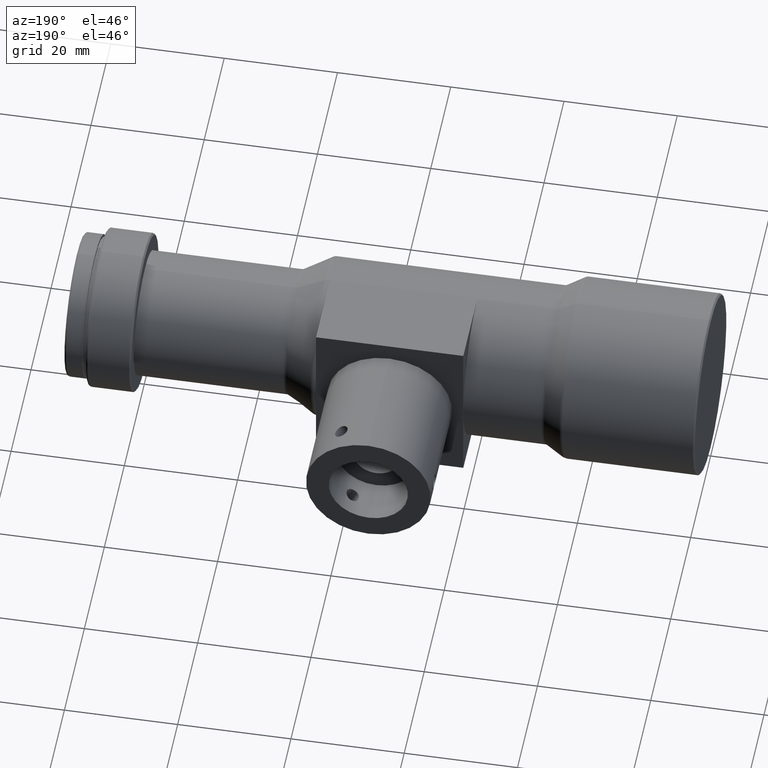
[diagram: clean part render]
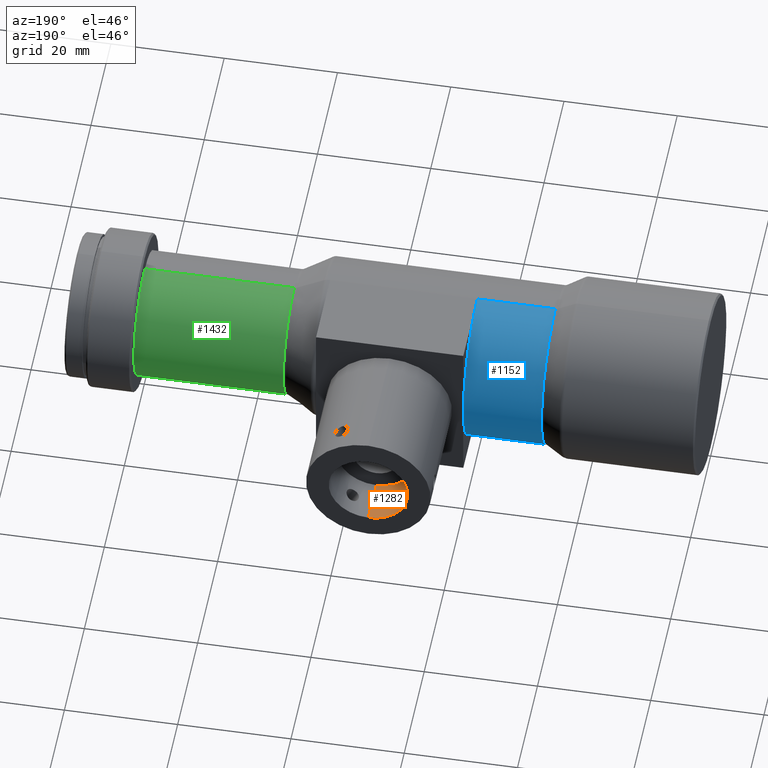
[diagram: same view with three faces highlighted in distinct colors, each labeled with its STEP entity id]
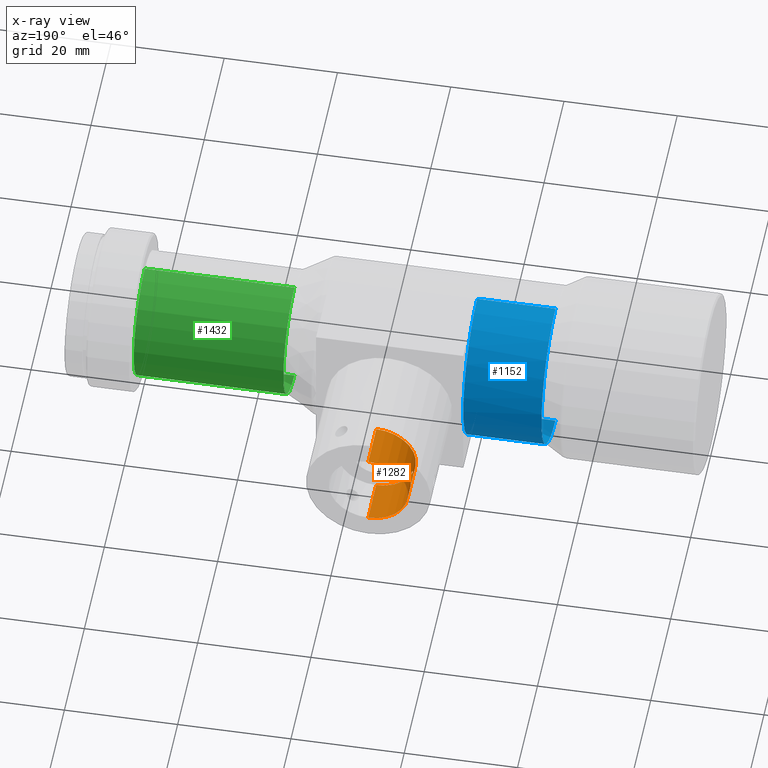
[diagram: x-ray of the same camera — body ghosted, the three highlighted faces saturated]
A machine part, auxiliary view with three faces highlighted in distinct colors.
The next image is the same camera in x-ray (body ghosted, the three faces saturated) — at least one of them is partly hidden behind the body in this view.
Their STEP definitions:

[orange] entity #1282 — the highlighted cylindrical surface (partial cylindrical patch) has radius 7 mm, axis along (-0, 1, -0).
#33 = CARTESIAN_POINT ( 'NONE',  ( 54.20000000000001000, 35.39999999999999900, 7.000000000000000000 ) ) ;
#39 = CARTESIAN_POINT ( 'NONE',  ( 54.20000000000001000, 27.40000000000000200, 0.0000000000000000000 ) ) ;
#58 = CARTESIAN_POINT ( 'NONE',  ( 54.20000000000001000, 35.39999999999999900, 0.0000000000000000000 ) ) ;
#96 = CARTESIAN_POINT ( 'NONE',  ( 47.19999445020086200, 32.65003107887736200, -0.08123712202961228000 ) ) ;
#99 = CIRCLE ( 'NONE', #1672, 7.000000000000000000 ) ;
#108 = DIRECTION ( 'NONE',  ( -0.0000000000000000000, 1.000000000000000000, -0.0000000000000000000 ) ) ;
#119 = ORIENTED_EDGE ( 'NONE', *, *, #1148, .T. ) ;
#128 = CARTESIAN_POINT ( 'NONE',  ( 47.30624763848616300, 31.07015152575997500, 1.216633492071508100 ) ) ;
#151 = ORIENTED_EDGE ( 'NONE', *, *, #305, .T. ) ;
#226 = VERTEX_POINT ( 'NONE', #1646 ) ;
#269 = CARTESIAN_POINT ( 'NONE',  ( 47.31251134302204500, 31.56553913245943500, 1.250000000000001300 ) ) ;
#290 = CARTESIAN_POINT ( 'NONE',  ( 47.27076355298639500, 30.63195494926796800, -0.9995772123579729200 ) ) ;
#305 = EDGE_CURVE ( 'NONE', #327, #1060, #365, .T. ) ;
#327 = VERTEX_POINT ( 'NONE', #405 ) ;
#348 = LINE ( 'NONE', #414, #1455 ) ;
#365 = B_SPLINE_CURVE_WITH_KNOTS ( 'NONE', 3,
 ( #1281, #1417, #709, #1009, #290, #1714, #1563, #586, #563, #849, #1868, #419, #715, #855, #993, #1876, #1001, #128, #1777, #1782 ),
 .UNSPECIFIED., .F., .F.,
 ( 4, 2, 2, 2, 2, 2, 2, 2, 2, 4 ),
 ( 0.003915921673075280600, 0.004405287907182408100, 0.004894654141289534800, 0.005139337258343097700, 0.005384020375396660600, 0.005873386609503784700, 0.006362752843610908700, 0.006852119077718031900, 0.007341485311825156000, 0.007830851545932280100 ),
 .UNSPECIFIED. ) ;
#388 = CARTESIAN_POINT ( 'NONE',  ( 54.20000000000001000, 27.40000000000000200, -7.000000000000000000 ) ) ;
#405 = CARTESIAN_POINT ( 'NONE',  ( 47.31251134302205900, 31.39999999999999900, -1.250000000000000400 ) ) ;
#414 = CARTESIAN_POINT ( 'NONE',  ( 54.20000000000001000, 27.40000000000000200, 7.000000000000000000 ) ) ;
#419 = CARTESIAN_POINT ( 'NONE',  ( 47.19998330756644800, 30.14990652235734100, 0.1644157568209602100 ) ) ;
#442 = EDGE_CURVE ( 'NONE', #1136, #1426, #1746, .T. ) ;
#498 = DIRECTION ( 'NONE',  ( 0.0000000000000000000, 0.0000000000000000000, 1.000000000000000000 ) ) ;
#559 = CARTESIAN_POINT ( 'NONE',  ( 47.21118106833900200, 32.58619094052551200, -0.4027145013732591500 ) ) ;
#563 = CARTESIAN_POINT ( 'NONE',  ( 47.22166988094440400, 30.27725504775173300, -0.5555869446522331300 ) ) ;
#586 = CARTESIAN_POINT ( 'NONE',  ( 47.22782945319922700, 30.31571790415281600, -0.6272702069744418000 ) ) ;
#642 = ORIENTED_EDGE ( 'NONE', *, *, #1710, .F. ) ;
#673 = CARTESIAN_POINT ( 'NONE',  ( 47.30113659022542500, 31.80311630002675800, -1.186040960982727600 ) ) ;
#683 = CIRCLE ( 'NONE', #1041, 7.000000000000000000 ) ;
#698 = CARTESIAN_POINT ( 'NONE',  ( 47.31251134302205200, 31.48166843449113400, -1.250000000000000200 ) ) ;
#705 = CARTESIAN_POINT ( 'NONE',  ( 47.31101124857313800, 31.56462904716200800, -1.241812948260637900 ) ) ;
#709 = CARTESIAN_POINT ( 'NONE',  ( 47.30633628029868700, 31.07193264778366500, -1.217126323476988000 ) ) ;
#715 = CARTESIAN_POINT ( 'NONE',  ( 47.20601565476956600, 30.18257295260065100, 0.3272984402716858600 ) ) ;
#720 = DIRECTION ( 'NONE',  ( -0.0000000000000000000, 1.000000000000000000, -0.0000000000000000000 ) ) ;
#814 = CARTESIAN_POINT ( 'NONE',  ( 47.20146707001509900, 32.64185800926153300, -0.1642584303260229100 ) ) ;
#822 = CARTESIAN_POINT ( 'NONE',  ( 47.30530559517647800, 31.72518862493722800, -1.209733226727564000 ) ) ;
#839 = CARTESIAN_POINT ( 'NONE',  ( 47.27065037257630600, 32.16902966695441500, 0.9987865128257633600 ) ) ;
#849 = CARTESIAN_POINT ( 'NONE',  ( 47.20605222460690000, 30.18276321364838600, -0.3282787373866664100 ) ) ;
#855 = CARTESIAN_POINT ( 'NONE',  ( 47.22671894707394800, 30.30777280865721900, 0.6295177894509640400 ) ) ;
#899 = VERTEX_POINT ( 'NONE', #33 ) ;
#910 = EDGE_CURVE ( 'NONE', #1136, #226, #99, .T. ) ;
#943 = FACE_BOUND ( 'NONE', #1006, .T. ) ;
#981 = VECTOR ( 'NONE', #1389, 1000.000000000000000 ) ;
#988 = CARTESIAN_POINT ( 'NONE',  ( 47.20707445421624000, 32.60985777344235000, -0.3247095858475530000 ) ) ;
#993 = CARTESIAN_POINT ( 'NONE',  ( 47.24132169751185000, 30.40065499329983100, 0.7682741751308227500 ) ) ;
#1001 = CARTESIAN_POINT ( 'NONE',  ( 47.28534409553674300, 30.76956786946603700, 1.091582520370768700 ) ) ;
#1003 = DIRECTION ( 'NONE',  ( 0.0000000000000000000, 0.0000000000000000000, 1.000000000000000000 ) ) ;
#1006 = EDGE_LOOP ( 'NONE', ( #119, #151 ) ) ;
#1009 = CARTESIAN_POINT ( 'NONE',  ( 47.28547976625344500, 30.77101767103177100, -1.092431189932138600 ) ) ;
#1039 = ORIENTED_EDGE ( 'NONE', *, *, #1835, .T. ) ;
#1041 = AXIS2_PLACEMENT_3D ( 'NONE', #58, #1345, #498 ) ;
#1060 = VERTEX_POINT ( 'NONE', #1654 ) ;
#1093 = CYLINDRICAL_SURFACE ( 'NONE', #1546, 7.000000000000000000 ) ;
#1094 = CARTESIAN_POINT ( 'NONE',  ( 47.22675679539990100, 32.49199649352329500, -0.6300439081026779600 ) ) ;
#1118 = CARTESIAN_POINT ( 'NONE',  ( 47.31251134302205900, 31.39999999999999900, 1.250000000000001300 ) ) ;
#1127 = EDGE_LOOP ( 'NONE', ( #1595, #1510, #1039, #642 ) ) ;
#1135 = CARTESIAN_POINT ( 'NONE',  ( 54.20000000000001000, 27.40000000000000200, 0.0000000000000000000 ) ) ;
#1136 = VERTEX_POINT ( 'NONE', #1703 ) ;
#1148 = EDGE_CURVE ( 'NONE', #1060, #327, #1211, .T. ) ;
#1211 = B_SPLINE_CURVE_WITH_KNOTS ( 'NONE', 3,
 ( #1118, #269, #1380, #1265, #839, #1395, #1856, #1840, #1259, #96, #814, #988, #559, #1094, #1690, #1548, #1533, #673, #822, #705, #698, #1711 ),
 .UNSPECIFIED., .F., .F.,
 ( 4, 2, 2, 2, 2, 2, 2, 2, 2, 2, 4 ),
 ( 0.0000000000000000000, 0.0004894902091344074700, 0.0009789804182688149400, 0.001468470627403222400, 0.001957960836537629900, 0.002202705941104833500, 0.002447451045672037100, 0.002936941254806451800, 0.003426431463940865900, 0.003671176568508073500, 0.003915921673075280600 ),
 .UNSPECIFIED. ) ;
#1259 = CARTESIAN_POINT ( 'NONE',  ( 47.20001114831628500, 32.64993756942444500, 0.1639046831583302100 ) ) ;
#1265 = CARTESIAN_POINT ( 'NONE',  ( 47.28535421199599400, 32.03056278845565400, 1.091663511085135400 ) ) ;
#1281 = CARTESIAN_POINT ( 'NONE',  ( 47.31251134302205900, 31.39999999999999900, -1.250000000000000400 ) ) ;
#1282 = ADVANCED_FACE ( 'NONE', ( #943, #1361 ), #1093, .F. ) ;
#1341 = CARTESIAN_POINT ( 'NONE',  ( 54.20000000000001000, 35.39999999999999900, -7.000000000000000000 ) ) ;
#1345 = DIRECTION ( 'NONE',  ( 0.0000000000000000000, 1.000000000000000000, 0.0000000000000000000 ) ) ;
#1361 = FACE_OUTER_BOUND ( 'NONE', #1127, .T. ) ;
#1380 = CARTESIAN_POINT ( 'NONE',  ( 47.30636023194671900, 31.72795168593746200, 1.217286467233768000 ) ) ;
#1389 = DIRECTION ( 'NONE',  ( -0.0000000000000000000, 1.000000000000000000, -0.0000000000000000000 ) ) ;
#1395 = CARTESIAN_POINT ( 'NONE',  ( 47.24135704394201000, 32.39911568873414200, 0.7686019564013473200 ) ) ;
#1417 = CARTESIAN_POINT ( 'NONE',  ( 47.31251134302207400, 31.23670449996117100, -1.250000000000000900 ) ) ;
#1426 = VERTEX_POINT ( 'NONE', #1341 ) ;
#1455 = VECTOR ( 'NONE', #108, 1000.000000000000000 ) ;
#1472 = DIRECTION ( 'NONE',  ( 0.0000000000000000000, 1.000000000000000000, 0.0000000000000000000 ) ) ;
#1510 = ORIENTED_EDGE ( 'NONE', *, *, #442, .T. ) ;
#1533 = CARTESIAN_POINT ( 'NONE',  ( 47.28541311508791300, 32.02988682116895100, -1.092028498905620400 ) ) ;
#1546 = AXIS2_PLACEMENT_3D ( 'NONE', #1135, #720, #1003 ) ;
#1548 = CARTESIAN_POINT ( 'NONE',  ( 47.27084026393611500, 32.16750837014412000, -1.000247881924822600 ) ) ;
#1563 = CARTESIAN_POINT ( 'NONE',  ( 47.24134071672380500, 30.40629755438335700, -0.7626867151773674100 ) ) ;
#1595 = ORIENTED_EDGE ( 'NONE', *, *, #910, .F. ) ;
#1626 = DIRECTION ( 'NONE',  ( 0.0000000000000000000, 0.0000000000000000000, 1.000000000000000000 ) ) ;
#1646 = CARTESIAN_POINT ( 'NONE',  ( 54.20000000000001000, 27.40000000000000200, 7.000000000000000000 ) ) ;
#1654 = CARTESIAN_POINT ( 'NONE',  ( 47.31251134302205900, 31.39999999999999900, 1.250000000000001300 ) ) ;
#1672 = AXIS2_PLACEMENT_3D ( 'NONE', #39, #1472, #1626 ) ;
#1690 = CARTESIAN_POINT ( 'NONE',  ( 47.24122567129738600, 32.40017728836593800, -0.7676003617595363900 ) ) ;
#1703 = CARTESIAN_POINT ( 'NONE',  ( 54.20000000000001000, 27.40000000000000200, -7.000000000000000000 ) ) ;
#1710 = EDGE_CURVE ( 'NONE', #226, #899, #348, .T. ) ;
#1711 = CARTESIAN_POINT ( 'NONE',  ( 47.31251134302205900, 31.39999999999999900, -1.250000000000000400 ) ) ;
#1714 = CARTESIAN_POINT ( 'NONE',  ( 47.24876563056439200, 30.45902809597947300, -0.8268668736252665600 ) ) ;
#1746 = LINE ( 'NONE', #388, #981 ) ;
#1777 = CARTESIAN_POINT ( 'NONE',  ( 47.31251134302207400, 31.23450279425960100, 1.250000000000001600 ) ) ;
#1782 = CARTESIAN_POINT ( 'NONE',  ( 47.31251134302205900, 31.39999999999999900, 1.250000000000001300 ) ) ;
#1835 = EDGE_CURVE ( 'NONE', #1426, #899, #683, .T. ) ;
#1840 = CARTESIAN_POINT ( 'NONE',  ( 47.20609517264760800, 32.61695936621455200, 0.3286504292976610800 ) ) ;
#1856 = CARTESIAN_POINT ( 'NONE',  ( 47.22672261310610500, 32.49219177781181900, 0.6293793166089303200 ) ) ;
#1868 = CARTESIAN_POINT ( 'NONE',  ( 47.20001676427574500, 30.15009387995871400, -0.1658340586822863400 ) ) ;
#1876 = CARTESIAN_POINT ( 'NONE',  ( 47.27058963863717600, 30.63044514096829100, 0.9983591385519594600 ) ) ;

[blue] entity #1152 — the highlighted cylindrical surface (partial cylindrical patch) has radius 14 mm, axis along (-1, -0, -0).
#4 = CARTESIAN_POINT ( 'NONE',  ( 27.39999999999999900, 0.0000000000000000000, 0.0000000000000000000 ) ) ;
#133 = CARTESIAN_POINT ( 'NONE',  ( 27.39999999999999900, 0.0000000000000000000, 14.00000000000000000 ) ) ;
#138 = DIRECTION ( 'NONE',  ( 1.000000000000000000, -0.0000000000000000000, 0.0000000000000000000 ) ) ;
#191 = CARTESIAN_POINT ( 'NONE',  ( 41.20000000000001000, 0.0000000000000000000, 0.0000000000000000000 ) ) ;
#207 = DIRECTION ( 'NONE',  ( -1.000000000000000000, -0.0000000000000000000, -0.0000000000000000000 ) ) ;
#303 = ORIENTED_EDGE ( 'NONE', *, *, #800, .T. ) ;
#367 = CARTESIAN_POINT ( 'NONE',  ( 41.20000000000001000, 0.0000000000000000000, 13.99999999999999800 ) ) ;
#379 = FACE_OUTER_BOUND ( 'NONE', #970, .T. ) ;
#452 = CIRCLE ( 'NONE', #570, 14.00000000000000000 ) ;
#470 = ORIENTED_EDGE ( 'NONE', *, *, #1897, .F. ) ;
#533 = VERTEX_POINT ( 'NONE', #1605 ) ;
#548 = DIRECTION ( 'NONE',  ( 0.0000000000000000000, 0.0000000000000000000, 1.000000000000000000 ) ) ;
#568 = VECTOR ( 'NONE', #741, 1000.000000000000000 ) ;
#570 = AXIS2_PLACEMENT_3D ( 'NONE', #191, #1078, #1518 ) ;
#622 = DIRECTION ( 'NONE',  ( -1.000000000000000000, -0.0000000000000000000, -0.0000000000000000000 ) ) ;
#674 = CIRCLE ( 'NONE', #1445, 14.00000000000000000 ) ;
#686 = AXIS2_PLACEMENT_3D ( 'NONE', #1884, #138, #1147 ) ;
#741 = DIRECTION ( 'NONE',  ( -1.000000000000000000, -0.0000000000000000000, -0.0000000000000000000 ) ) ;
#748 = DIRECTION ( 'NONE',  ( 0.0000000000000000000, 0.0000000000000000000, 1.000000000000000000 ) ) ;
#751 = EDGE_CURVE ( 'NONE', #1253, #533, #674, .T. ) ;
#766 = VERTEX_POINT ( 'NONE', #1025 ) ;
#800 = EDGE_CURVE ( 'NONE', #1454, #533, #963, .T. ) ;
#917 = CYLINDRICAL_SURFACE ( 'NONE', #1894, 14.00000000000000000 ) ;
#937 = VERTEX_POINT ( 'NONE', #367 ) ;
#963 = LINE ( 'NONE', #1170, #568 ) ;
#970 = EDGE_LOOP ( 'NONE', ( #1286, #303, #1225, #470, #1051 ) ) ;
#973 = VECTOR ( 'NONE', #207, 1000.000000000000000 ) ;
#1025 = CARTESIAN_POINT ( 'NONE',  ( 41.20000000000001000, 14.00000000000000000, 3.469446951953614200E-015 ) ) ;
#1051 = ORIENTED_EDGE ( 'NONE', *, *, #1784, .F. ) ;
#1078 = DIRECTION ( 'NONE',  ( 1.000000000000000000, -0.0000000000000000000, 0.0000000000000000000 ) ) ;
#1126 = CARTESIAN_POINT ( 'NONE',  ( 0.0000000000000000000, 0.0000000000000000000, 0.0000000000000000000 ) ) ;
#1147 = DIRECTION ( 'NONE',  ( 0.0000000000000000000, 0.0000000000000000000, -1.000000000000000000 ) ) ;
#1152 = ADVANCED_FACE ( 'NONE', ( #379 ), #917, .T. ) ;
#1170 = CARTESIAN_POINT ( 'NONE',  ( 0.0000000000000000000, 1.714505518806294600E-015, -14.00000000000000000 ) ) ;
#1186 = LINE ( 'NONE', #1831, #973 ) ;
#1214 = EDGE_CURVE ( 'NONE', #1454, #766, #1337, .T. ) ;
#1225 = ORIENTED_EDGE ( 'NONE', *, *, #751, .F. ) ;
#1253 = VERTEX_POINT ( 'NONE', #133 ) ;
#1269 = DIRECTION ( 'NONE',  ( -1.000000000000000000, -0.0000000000000000000, -0.0000000000000000000 ) ) ;
#1286 = ORIENTED_EDGE ( 'NONE', *, *, #1214, .F. ) ;
#1337 = CIRCLE ( 'NONE', #686, 14.00000000000000000 ) ;
#1348 = CARTESIAN_POINT ( 'NONE',  ( 41.20000000000001000, 0.0000000000000000000, -14.00000000000000000 ) ) ;
#1445 = AXIS2_PLACEMENT_3D ( 'NONE', #4, #622, #748 ) ;
#1454 = VERTEX_POINT ( 'NONE', #1348 ) ;
#1518 = DIRECTION ( 'NONE',  ( 0.0000000000000000000, 0.0000000000000000000, -1.000000000000000000 ) ) ;
#1605 = CARTESIAN_POINT ( 'NONE',  ( 27.39999999999999900, 1.714505518806294600E-015, -14.00000000000000000 ) ) ;
#1784 = EDGE_CURVE ( 'NONE', #766, #937, #452, .T. ) ;
#1831 = CARTESIAN_POINT ( 'NONE',  ( 0.0000000000000000000, 0.0000000000000000000, 14.00000000000000000 ) ) ;
#1884 = CARTESIAN_POINT ( 'NONE',  ( 41.20000000000001000, 0.0000000000000000000, 0.0000000000000000000 ) ) ;
#1894 = AXIS2_PLACEMENT_3D ( 'NONE', #1126, #1269, #548 ) ;
#1897 = EDGE_CURVE ( 'NONE', #937, #1253, #1186, .T. ) ;

[green] entity #1432 — the highlighted cylindrical surface (partial cylindrical patch) has radius 11 mm, axis along (-1, -0, -0).
#36 = CARTESIAN_POINT ( 'NONE',  ( 73.50000000000000000, 0.0000000000000000000, 0.0000000000000000000 ) ) ;
#46 = CARTESIAN_POINT ( 'NONE',  ( 99.90000000000000600, 0.0000000000000000000, 0.0000000000000000000 ) ) ;
#63 = VERTEX_POINT ( 'NONE', #547 ) ;
#110 = AXIS2_PLACEMENT_3D ( 'NONE', #46, #1650, #1819 ) ;
#187 = CIRCLE ( 'NONE', #487, 11.00000000000000000 ) ;
#199 = CARTESIAN_POINT ( 'NONE',  ( 99.90000000000000600, 1.347111479062088400E-015, -11.00000000000000000 ) ) ;
#315 = DIRECTION ( 'NONE',  ( -1.000000000000000000, -0.0000000000000000000, -0.0000000000000000000 ) ) ;
#351 = CARTESIAN_POINT ( 'NONE',  ( 0.0000000000000000000, 0.0000000000000000000, 0.0000000000000000000 ) ) ;
#408 = EDGE_LOOP ( 'NONE', ( #1862, #1745, #816, #1300 ) ) ;
#487 = AXIS2_PLACEMENT_3D ( 'NONE', #36, #891, #1330 ) ;
#505 = DIRECTION ( 'NONE',  ( -1.000000000000000000, -0.0000000000000000000, -0.0000000000000000000 ) ) ;
#542 = DIRECTION ( 'NONE',  ( -1.000000000000000000, -0.0000000000000000000, -0.0000000000000000000 ) ) ;
#547 = CARTESIAN_POINT ( 'NONE',  ( 99.90000000000000600, 0.0000000000000000000, 11.00000000000000000 ) ) ;
#712 = VERTEX_POINT ( 'NONE', #942 ) ;
#770 = CARTESIAN_POINT ( 'NONE',  ( 73.50000000000000000, 0.0000000000000000000, 11.00000000000000000 ) ) ;
#777 = DIRECTION ( 'NONE',  ( 0.0000000000000000000, 0.0000000000000000000, 1.000000000000000000 ) ) ;
#816 = ORIENTED_EDGE ( 'NONE', *, *, #1365, .F. ) ;
#891 = DIRECTION ( 'NONE',  ( -1.000000000000000000, -0.0000000000000000000, -0.0000000000000000000 ) ) ;
#942 = CARTESIAN_POINT ( 'NONE',  ( 73.50000000000000000, 1.347111479062088400E-015, -11.00000000000000000 ) ) ;
#954 = VERTEX_POINT ( 'NONE', #199 ) ;
#998 = CYLINDRICAL_SURFACE ( 'NONE', #1371, 11.00000000000000000 ) ;
#1036 = LINE ( 'NONE', #1616, #1761 ) ;
#1167 = CIRCLE ( 'NONE', #110, 11.00000000000000000 ) ;
#1300 = ORIENTED_EDGE ( 'NONE', *, *, #1415, .F. ) ;
#1330 = DIRECTION ( 'NONE',  ( 0.0000000000000000000, 0.0000000000000000000, 1.000000000000000000 ) ) ;
#1343 = VERTEX_POINT ( 'NONE', #770 ) ;
#1365 = EDGE_CURVE ( 'NONE', #1343, #712, #187, .T. ) ;
#1371 = AXIS2_PLACEMENT_3D ( 'NONE', #351, #505, #777 ) ;
#1391 = VECTOR ( 'NONE', #542, 1000.000000000000000 ) ;
#1415 = EDGE_CURVE ( 'NONE', #63, #1343, #1036, .T. ) ;
#1432 = ADVANCED_FACE ( 'NONE', ( #1701 ), #998, .T. ) ;
#1494 = LINE ( 'NONE', #1825, #1391 ) ;
#1616 = CARTESIAN_POINT ( 'NONE',  ( 0.0000000000000000000, 0.0000000000000000000, 11.00000000000000000 ) ) ;
#1650 = DIRECTION ( 'NONE',  ( -1.000000000000000000, -0.0000000000000000000, -0.0000000000000000000 ) ) ;
#1701 = FACE_OUTER_BOUND ( 'NONE', #408, .T. ) ;
#1721 = EDGE_CURVE ( 'NONE', #954, #712, #1494, .T. ) ;
#1745 = ORIENTED_EDGE ( 'NONE', *, *, #1721, .T. ) ;
#1761 = VECTOR ( 'NONE', #315, 1000.000000000000000 ) ;
#1819 = DIRECTION ( 'NONE',  ( 0.0000000000000000000, 0.0000000000000000000, 1.000000000000000000 ) ) ;
#1825 = CARTESIAN_POINT ( 'NONE',  ( 0.0000000000000000000, 1.347111479062088400E-015, -11.00000000000000000 ) ) ;
#1832 = EDGE_CURVE ( 'NONE', #63, #954, #1167, .T. ) ;
#1862 = ORIENTED_EDGE ( 'NONE', *, *, #1832, .T. ) ;